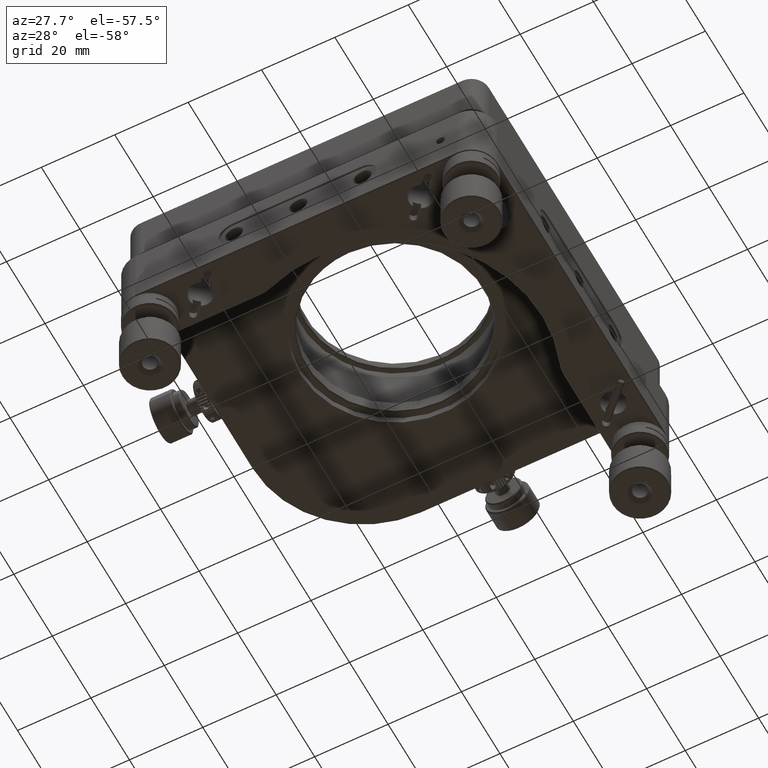
[diagram: clean part render]
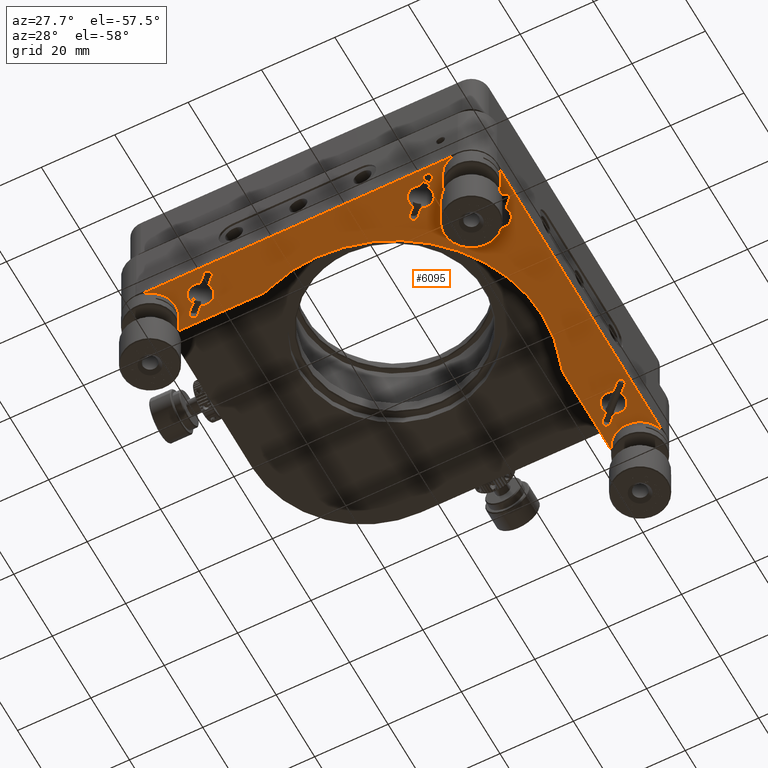
[diagram: same view with one face highlighted and labeled with its STEP entity id]
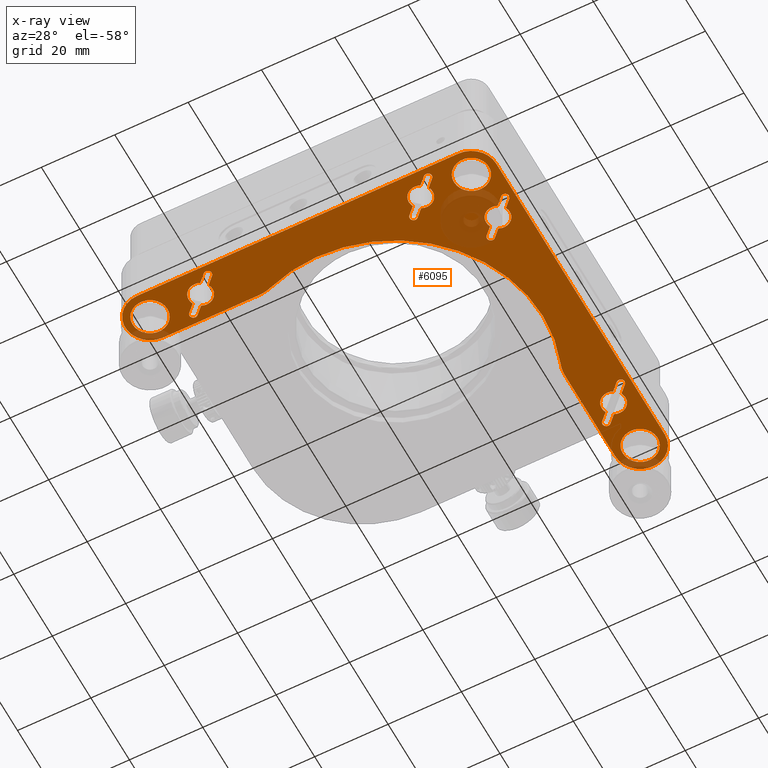
[diagram: x-ray of the same camera — body ghosted, the highlighted face saturated]
A machine part, auxiliary view. The second image highlights one B-rep face of the part: STEP entity #6095.
The next image is the same camera in x-ray: the body ghosted, the highlighted face saturated — about 10% of this face is hidden behind the body in this view.
In plain terms, the highlighted planar face has unit normal (0, 0, 1).
Its self-contained STEP definition (entity closure, byte-faithful):
#19 = CARTESIAN_POINT ( 'NONE',  ( -52.82053211124533476, 12.63560787075346958, 4.538425379416565875 ) ) ;
#71 = CARTESIAN_POINT ( 'NONE',  ( -56.25000000000004974, -42.45000000000000995, 4.538425379416565875 ) ) ;
#103 = CARTESIAN_POINT ( 'NONE',  ( -148.6000000000000512, -56.25000000000004263, 4.538425379416565875 ) ) ;
#342 = VERTEX_POINT ( 'NONE', #31326 ) ;
#453 = CARTESIAN_POINT ( 'NONE',  ( -51.33560787075357013, -45.87946788875479598, 4.538425379416564986 ) ) ;
#557 = CIRCLE ( 'NONE', #39779, 40.24999999999997868 ) ;
#833 = CARTESIAN_POINT ( 'NONE',  ( -117.6500000000000483, -59.25000000000004263, 4.538425379416566763 ) ) ;
#965 = EDGE_CURVE ( 'NONE', #10097, #51570, #53167, .T. ) ;
#1050 = CIRCLE ( 'NONE', #23262, 3.250000000000002665 ) ;
#1102 = LINE ( 'NONE', #52419, #21638 ) ;
#1263 = CIRCLE ( 'NONE', #42216, 3.250000000000002665 ) ;
#1331 = EDGE_CURVE ( 'NONE', #7213, #31013, #44115, .T. ) ;
#1424 = AXIS2_PLACEMENT_3D ( 'NONE', #833, #46845, #13633 ) ;
#1595 = ORIENTED_EDGE ( 'NONE', *, *, #11805, .F. ) ;
#1645 = PLANE ( 'NONE',  #1857 ) ;
#1665 = LINE ( 'NONE', #14457, #3009 ) ;
#1686 = CARTESIAN_POINT ( 'NONE',  ( -134.2219300090007152, -52.07806999099941692, 4.538425379416565875 ) ) ;
#1724 = LINE ( 'NONE', #52733, #5985 ) ;
#1817 = VERTEX_POINT ( 'NONE', #18417 ) ;
#1850 = CARTESIAN_POINT ( 'NONE',  ( -134.9643921292465620, -52.82053211124529213, 4.538425379416564986 ) ) ;
#1857 = AXIS2_PLACEMENT_3D ( 'NONE', #48761, #44302, #24147 ) ;
#1981 = DIRECTION ( 'NONE',  ( -0.000000000000000000, -0.000000000000000000, -1.000000000000000000 ) ) ;
#2151 = DIRECTION ( 'NONE',  ( 0.000000000000000000, -0.000000000000000000, 1.000000000000000000 ) ) ;
#2319 = AXIS2_PLACEMENT_3D ( 'NONE', #17116, #50349, #20482 ) ;
#2450 = LINE ( 'NONE', #31977, #10220 ) ;
#2513 = AXIS2_PLACEMENT_3D ( 'NONE', #49098, #1981, #40182 ) ;
#2601 = LINE ( 'NONE', #34846, #14791 ) ;
#2625 = ORIENTED_EDGE ( 'NONE', *, *, #965, .F. ) ;
#2861 = CARTESIAN_POINT ( 'NONE',  ( -73.47946788875484003, -51.33560787075354170, 4.538425379416565875 ) ) ;
#2902 = CARTESIAN_POINT ( 'NONE',  ( -72.96731843733910239, -54.81760580315277309, 4.538425379416566763 ) ) ;
#2910 = ORIENTED_EDGE ( 'NONE', *, *, #14964, .F. ) ;
#3009 = VECTOR ( 'NONE', #14199, 1000.000000000000114 ) ;
#3011 = LINE ( 'NONE', #53225, #5729 ) ;
#3146 = EDGE_CURVE ( 'NONE', #31013, #41719, #5848, .T. ) ;
#3234 = ORIENTED_EDGE ( 'NONE', *, *, #41774, .F. ) ;
#3260 = EDGE_CURVE ( 'NONE', #39385, #4608, #23299, .T. ) ;
#3402 = EDGE_CURVE ( 'NONE', #54981, #40426, #30019, .T. ) ;
#4123 = EDGE_LOOP ( 'NONE', ( #40074, #21198, #43473, #21417, #18763, #1595, #2910, #5221 ) ) ;
#4129 = CARTESIAN_POINT ( 'NONE',  ( -49.50000000000039080, 31.34999999999996945, 4.538425379402511339 ) ) ;
#4199 = LINE ( 'NONE', #19, #8682 ) ;
#4247 = EDGE_CURVE ( 'NONE', #35050, #54963, #15650, .T. ) ;
#4446 = DIRECTION ( 'NONE',  ( -0.7071067811865500152, 0.7071067811865451302, 0.000000000000000000 ) ) ;
#4608 = VERTEX_POINT ( 'NONE', #32803 ) ;
#4716 = ORIENTED_EDGE ( 'NONE', *, *, #3402, .F. ) ;
#4729 = CIRCLE ( 'NONE', #43046, 3.250000000000002665 ) ;
#4763 = CARTESIAN_POINT ( 'NONE',  ( -52.82053211124533476, 12.63560787075346958, 4.538425379416565875 ) ) ;
#4901 = AXIS2_PLACEMENT_3D ( 'NONE', #44406, #14543, #40484 ) ;
#5221 = ORIENTED_EDGE ( 'NONE', *, *, #8410, .T. ) ;
#5347 = EDGE_CURVE ( 'NONE', #54963, #6647, #53457, .T. ) ;
#5726 = EDGE_CURVE ( 'NONE', #12159, #17406, #34767, .T. ) ;
#5729 = VECTOR ( 'NONE', #37321, 1000.000000000000000 ) ;
#5803 = FACE_BOUND ( 'NONE', #42580, .T. ) ;
#5848 = LINE ( 'NONE', #6121, #54503 ) ;
#5985 = VECTOR ( 'NONE', #6157, 1000.000000000000227 ) ;
#6095 = ADVANCED_FACE ( 'NONE', ( #22518, #35646, #39564, #9986, #26985, #5803, #22799, #39845 ), #1645, .F. ) ;
#6121 = CARTESIAN_POINT ( 'NONE',  ( -126.6205321112452680, -61.16439212924651514, 4.538425379416565875 ) ) ;
#6157 = DIRECTION ( 'NONE',  ( -0.7071067811865487940, 0.7071067811865462405, 0.000000000000000000 ) ) ;
#6251 = ORIENTED_EDGE ( 'NONE', *, *, #28095, .F. ) ;
#6552 = EDGE_CURVE ( 'NONE', #21517, #39385, #3011, .T. ) ;
#6647 = VERTEX_POINT ( 'NONE', #25018 ) ;
#6852 = AXIS2_PLACEMENT_3D ( 'NONE', #25169, #46668, #16266 ) ;
#7051 = DIRECTION ( 'NONE',  ( -0.7071067811865561215, 0.7071067811865389130, 0.000000000000000000 ) ) ;
#7213 = VERTEX_POINT ( 'NONE', #48391 ) ;
#7485 = CARTESIAN_POINT ( 'NONE',  ( -52.07806999099944534, -46.62193000900066409, 4.538425379416565875 ) ) ;
#8187 = AXIS2_PLACEMENT_3D ( 'NONE', #47086, #39000, #38436 ) ;
#8220 = CARTESIAN_POINT ( 'NONE',  ( -65.13560787075353176, -59.67946788875476472, 4.538425379416564986 ) ) ;
#8351 = CARTESIAN_POINT ( 'NONE',  ( -128.6176058031527702, -59.16731843733904839, 4.538425379416565875 ) ) ;
#8397 = CARTESIAN_POINT ( 'NONE',  ( -67.13268156266103404, -57.68239419684731217, 4.538425379416564986 ) ) ;
#8410 = EDGE_CURVE ( 'NONE', #19141, #32996, #11333, .T. ) ;
#8650 = CIRCLE ( 'NONE', #39841, 6.750000000067757355 ) ;
#8682 = VECTOR ( 'NONE', #12553, 1000.000000000000000 ) ;
#8716 = AXIS2_PLACEMENT_3D ( 'NONE', #48387, #44726, #31337 ) ;
#9014 = DIRECTION ( 'NONE',  ( -0.000000000000000000, 1.000000000000000000, 0.000000000000000000 ) ) ;
#9240 = VECTOR ( 'NONE', #45577, 1000.000000000000000 ) ;
#9427 = EDGE_CURVE ( 'NONE', #17991, #14417, #44716, .T. ) ;
#9535 = CIRCLE ( 'NONE', #51420, 4.750000000000004441 ) ;
#9986 = FACE_BOUND ( 'NONE', #27141, .T. ) ;
#10097 = VERTEX_POINT ( 'NONE', #16424 ) ;
#10117 = LINE ( 'NONE', #52261, #46769 ) ;
#10220 = VECTOR ( 'NONE', #18902, 1000.000000000000000 ) ;
#10290 = DIRECTION ( 'NONE',  ( 0.000000000000000000, -0.000000000000000000, 1.000000000000000000 ) ) ;
#10815 = CARTESIAN_POINT ( 'NONE',  ( -56.25000000000004974, -42.45000000000000995, 4.538425379416565875 ) ) ;
#11135 = EDGE_LOOP ( 'NONE', ( #25662 ) ) ;
#11333 = CIRCLE ( 'NONE', #6852, 3.250000000000002665 ) ;
#11384 = DIRECTION ( 'NONE',  ( -1.000000000000000000, -4.270088556250598741E-15, 0.000000000000000000 ) ) ;
#11763 = CARTESIAN_POINT ( 'NONE',  ( -60.42193000900068256, 21.72193000900064064, 4.538425379416565875 ) ) ;
#11771 = DIRECTION ( 'NONE',  ( -1.000000000000000000, 0.000000000000000000, 0.000000000000000000 ) ) ;
#11805 = EDGE_CURVE ( 'NONE', #39230, #17991, #14960, .T. ) ;
#11857 = AXIS2_PLACEMENT_3D ( 'NONE', #51315, #34830, #47677 ) ;
#12159 = VERTEX_POINT ( 'NONE', #41200 ) ;
#12429 = VERTEX_POINT ( 'NONE', #1850 ) ;
#12516 = EDGE_CURVE ( 'NONE', #32725, #43049, #34675, .T. ) ;
#12553 = DIRECTION ( 'NONE',  ( -0.7071067811865432429, 0.7071067811865517916, 0.000000000000000000 ) ) ;
#12644 = DIRECTION ( 'NONE',  ( 0.000000000000000000, -1.000000000000000000, -0.000000000000000000 ) ) ;
#12660 = ORIENTED_EDGE ( 'NONE', *, *, #52655, .F. ) ;
#12760 = DIRECTION ( 'NONE',  ( -1.000000000000000000, 0.000000000000000000, 0.000000000000000000 ) ) ;
#12867 = ORIENTED_EDGE ( 'NONE', *, *, #24381, .F. ) ;
#13083 = DIRECTION ( 'NONE',  ( 0.000000000000000000, -0.000000000000000000, 1.000000000000000000 ) ) ;
#13566 = CARTESIAN_POINT ( 'NONE',  ( -100.0500000000000540, -63.00000000000005684, 4.538425379416565875 ) ) ;
#13633 = DIRECTION ( 'NONE',  ( 1.000000000000000000, 0.000000000000000000, 0.000000000000000000 ) ) ;
#13978 = VECTOR ( 'NONE', #41154, 1000.000000000000000 ) ;
#14003 = LINE ( 'NONE', #14262, #44240 ) ;
#14070 = ORIENTED_EDGE ( 'NONE', *, *, #28235, .F. ) ;
#14164 = CARTESIAN_POINT ( 'NONE',  ( -53.25000000000005684, 5.149999999999953282, 4.538425379416553440 ) ) ;
#14199 = DIRECTION ( 'NONE',  ( -0.7071067811865451302, 0.7071067811865500152, 0.000000000000000000 ) ) ;
#14262 = CARTESIAN_POINT ( 'NONE',  ( -53.33268156266102977, -43.88239419684731502, 4.538425379416565875 ) ) ;
#14417 = VERTEX_POINT ( 'NONE', #28802 ) ;
#14457 = CARTESIAN_POINT ( 'NONE',  ( -52.82053211124532055, -47.36439212924652509, 4.538425379416565875 ) ) ;
#14543 = DIRECTION ( 'NONE',  ( -0.000000000000000000, -0.000000000000000000, 1.000000000000000000 ) ) ;
#14791 = VECTOR ( 'NONE', #43220, 1000.000000000000000 ) ;
#14834 = ORIENTED_EDGE ( 'NONE', *, *, #38389, .T. ) ;
#14854 = EDGE_CURVE ( 'NONE', #51081, #14417, #1050, .T. ) ;
#14960 = CIRCLE ( 'NONE', #2513, 1.049999999999995381 ) ;
#14964 = EDGE_CURVE ( 'NONE', #19141, #39230, #28887, .T. ) ;
#15145 = VECTOR ( 'NONE', #45920, 1000.000000000000000 ) ;
#15430 = EDGE_CURVE ( 'NONE', #42335, #54981, #16557, .T. ) ;
#15650 = LINE ( 'NONE', #31835, #48313 ) ;
#15683 = VERTEX_POINT ( 'NONE', #23455 ) ;
#15824 = CIRCLE ( 'NONE', #8716, 4.750000000000004441 ) ;
#16229 = EDGE_CURVE ( 'NONE', #46124, #46124, #9535, .T. ) ;
#16232 = DIRECTION ( 'NONE',  ( -0.000000000000000000, -0.000000000000000000, 1.000000000000000000 ) ) ;
#16266 = DIRECTION ( 'NONE',  ( -1.000000000000000000, 0.000000000000000000, 0.000000000000000000 ) ) ;
#16291 = DIRECTION ( 'NONE',  ( -1.000000000000000000, 0.000000000000000000, 0.000000000000000000 ) ) ;
#16313 = AXIS2_PLACEMENT_3D ( 'NONE', #30545, #34472, #35584 ) ;
#16351 = EDGE_CURVE ( 'NONE', #15683, #12429, #1724, .T. ) ;
#16424 = CARTESIAN_POINT ( 'NONE',  ( -51.33560787075358434, 14.12053211124520580, 4.538425379416565875 ) ) ;
#16557 = LINE ( 'NONE', #51145, #19267 ) ;
#16904 = EDGE_CURVE ( 'NONE', #4608, #43377, #18019, .T. ) ;
#17081 = CARTESIAN_POINT ( 'NONE',  ( -57.68239419684732638, -39.53268156266097577, 4.538425379416565875 ) ) ;
#17116 = CARTESIAN_POINT ( 'NONE',  ( -130.0500000000000682, -56.25000000000002842, 4.538425379416565875 ) ) ;
#17406 = VERTEX_POINT ( 'NONE', #2861 ) ;
#17880 = DIRECTION ( 'NONE',  ( 0.7071067811865450192, -0.7071067811865500152, 0.000000000000000000 ) ) ;
#17991 = VERTEX_POINT ( 'NONE', #31938 ) ;
#18019 = LINE ( 'NONE', #13566, #19222 ) ;
#18032 = CARTESIAN_POINT ( 'NONE',  ( -133.4794678887548400, -51.33560787075354170, 4.538425379416564986 ) ) ;
#18417 = CARTESIAN_POINT ( 'NONE',  ( -54.81760580315279441, 14.63268156266094699, 4.538425379416565875 ) ) ;
#18631 = ORIENTED_EDGE ( 'NONE', *, *, #16351, .F. ) ;
#18763 = ORIENTED_EDGE ( 'NONE', *, *, #9427, .F. ) ;
#18861 = EDGE_LOOP ( 'NONE', ( #49660 ) ) ;
#18902 = DIRECTION ( 'NONE',  ( -0.7071067811865439090, 0.7071067811865512365, 0.000000000000000000 ) ) ;
#19141 = VERTEX_POINT ( 'NONE', #8397 ) ;
#19222 = VECTOR ( 'NONE', #23028, 1000.000000000000000 ) ;
#19265 = VERTEX_POINT ( 'NONE', #35970 ) ;
#19267 = VECTOR ( 'NONE', #12644, 1000.000000000000000 ) ;
#19628 = AXIS2_PLACEMENT_3D ( 'NONE', #24213, #49086, #19764 ) ;
#19630 = CARTESIAN_POINT ( 'NONE',  ( -59.67946788875480735, 22.46439212924650874, 4.538425379416565875 ) ) ;
#19746 = CARTESIAN_POINT ( 'NONE',  ( -127.1326815626610482, -57.68239419684729796, 4.538425379416565875 ) ) ;
#19753 = DIRECTION ( 'NONE',  ( 0.000000000000000000, 0.000000000000000000, -1.000000000000000000 ) ) ;
#19764 = DIRECTION ( 'NONE',  ( -1.000000000000000000, 0.000000000000000000, 0.000000000000000000 ) ) ;
#19964 = DIRECTION ( 'NONE',  ( 0.000000000000000000, 0.000000000000000000, 1.000000000000000000 ) ) ;
#20084 = CARTESIAN_POINT ( 'NONE',  ( -61.16439212924655777, 20.97946788875476543, 4.538425379416564986 ) ) ;
#20127 = DIRECTION ( 'NONE',  ( 0.000000000000000000, 0.000000000000000000, -1.000000000000000000 ) ) ;
#20402 = DIRECTION ( 'NONE',  ( -1.000000000000000000, 0.000000000000000000, 0.000000000000000000 ) ) ;
#20482 = DIRECTION ( 'NONE',  ( -1.000000000000000000, 0.000000000000000000, 0.000000000000000000 ) ) ;
#20628 = EDGE_CURVE ( 'NONE', #43049, #42335, #8650, .T. ) ;
#20678 = ORIENTED_EDGE ( 'NONE', *, *, #28600, .F. ) ;
#20693 = ORIENTED_EDGE ( 'NONE', *, *, #46492, .F. ) ;
#21198 = ORIENTED_EDGE ( 'NONE', *, *, #5726, .F. ) ;
#21291 = EDGE_CURVE ( 'NONE', #52258, #44997, #4729, .T. ) ;
#21417 = ORIENTED_EDGE ( 'NONE', *, *, #14854, .T. ) ;
#21496 = EDGE_CURVE ( 'NONE', #43079, #39598, #28156, .T. ) ;
#21517 = VERTEX_POINT ( 'NONE', #23684 ) ;
#21611 = EDGE_CURVE ( 'NONE', #52630, #55146, #47509, .T. ) ;
#21638 = VECTOR ( 'NONE', #4446, 1000.000000000000114 ) ;
#21672 = EDGE_CURVE ( 'NONE', #51081, #12159, #1102, .T. ) ;
#21699 = CARTESIAN_POINT ( 'NONE',  ( -56.25000000000004263, 31.34999999999996945, 4.538425379484991140 ) ) ;
#21773 = ORIENTED_EDGE ( 'NONE', *, *, #3260, .F. ) ;
#22074 = DIRECTION ( 'NONE',  ( 0.000000000000000000, 0.000000000000000000, -1.000000000000000000 ) ) ;
#22518 = FACE_BOUND ( 'NONE', #22999, .T. ) ;
#22776 = CARTESIAN_POINT ( 'NONE',  ( -56.25000000000005684, -56.25000000000003553, 4.538425379416565875 ) ) ;
#22799 = FACE_BOUND ( 'NONE', #18861, .T. ) ;
#22857 = EDGE_LOOP ( 'NONE', ( #33539, #21773, #51477, #12867, #6251, #4716, #30639, #52253, #43586, #20678 ) ) ;
#22999 = EDGE_LOOP ( 'NONE', ( #55155, #36747, #46724, #34990, #36158, #27693, #41826, #2625 ) ) ;
#23028 = DIRECTION ( 'NONE',  ( 1.000000000000000000, 0.000000000000000000, -0.000000000000000000 ) ) ;
#23262 = AXIS2_PLACEMENT_3D ( 'NONE', #35154, #19964, #31758 ) ;
#23299 = CIRCLE ( 'NONE', #8187, 6.750000000010913936 ) ;
#23423 = VECTOR ( 'NONE', #23950, 1000.000000000000227 ) ;
#23455 = CARTESIAN_POINT ( 'NONE',  ( -132.9673184373391166, -54.81760580315275178, 4.538425379416564098 ) ) ;
#23650 = DIRECTION ( 'NONE',  ( -0.7071067811865536790, 0.7071067811865414665, 0.000000000000000000 ) ) ;
#23684 = CARTESIAN_POINT ( 'NONE',  ( -117.6500000000000625, -49.50000000000002842, 4.538425379416565875 ) ) ;
#23950 = DIRECTION ( 'NONE',  ( 0.7071067811865487940, -0.7071067811865462405, 0.000000000000000000 ) ) ;
#24065 = AXIS2_PLACEMENT_3D ( 'NONE', #11763, #20127, #20402 ) ;
#24147 = DIRECTION ( 'NONE',  ( 1.000000000000000000, 0.000000000000000000, -0.000000000000000000 ) ) ;
#24175 = ORIENTED_EDGE ( 'NONE', *, *, #21496, .F. ) ;
#24213 = CARTESIAN_POINT ( 'NONE',  ( -74.22193000900071524, -52.07806999099941692, 4.538425379416565875 ) ) ;
#24361 = AXIS2_PLACEMENT_3D ( 'NONE', #10815, #36203, #11384 ) ;
#24381 = EDGE_CURVE ( 'NONE', #342, #21517, #38792, .T. ) ;
#24492 = DIRECTION ( 'NONE',  ( -1.000000000000000000, 0.000000000000000000, 0.000000000000000000 ) ) ;
#24558 = CARTESIAN_POINT ( 'NONE',  ( -59.16731843733907681, -41.01760580315271199, 4.538425379416565875 ) ) ;
#25005 = EDGE_CURVE ( 'NONE', #34837, #39598, #31673, .T. ) ;
#25018 = CARTESIAN_POINT ( 'NONE',  ( -59.67946788875480735, 22.46439212924650519, 4.538425379416564986 ) ) ;
#25099 = CARTESIAN_POINT ( 'NONE',  ( -61.00000000000006395, 31.34999999999997655, 4.538425379416565875 ) ) ;
#25169 = CARTESIAN_POINT ( 'NONE',  ( -70.05000000000005400, -56.25000000000003553, 4.538425379416565875 ) ) ;
#25570 = AXIS2_PLACEMENT_3D ( 'NONE', #1686, #51884, #51613 ) ;
#25662 = ORIENTED_EDGE ( 'NONE', *, *, #33977, .T. ) ;
#25719 = DIRECTION ( 'NONE',  ( -0.000000000000000000, -0.000000000000000000, -1.000000000000000000 ) ) ;
#25777 = CARTESIAN_POINT ( 'NONE',  ( -49.50000000000038369, -56.25000000000003553, 4.538425379402518445 ) ) ;
#26032 = EDGE_CURVE ( 'NONE', #49563, #52630, #2450, .T. ) ;
#26459 = CIRCLE ( 'NONE', #25570, 1.049999999999995381 ) ;
#26877 = CARTESIAN_POINT ( 'NONE',  ( -63.00000000003427658, 31.34999999999998366, 4.538425379450778507 ) ) ;
#26985 = FACE_BOUND ( 'NONE', #4123, .T. ) ;
#27141 = EDGE_LOOP ( 'NONE', ( #49812 ) ) ;
#27693 = ORIENTED_EDGE ( 'NONE', *, *, #37214, .T. ) ;
#27777 = DIRECTION ( 'NONE',  ( 1.000000000000000000, 0.000000000000000000, 0.000000000000000000 ) ) ;
#27866 = CARTESIAN_POINT ( 'NONE',  ( -133.4794678887548400, -51.33560787075354170, 4.538425379416565875 ) ) ;
#28095 = EDGE_CURVE ( 'NONE', #40426, #342, #557, .T. ) ;
#28156 = LINE ( 'NONE', #27866, #23423 ) ;
#28235 = EDGE_CURVE ( 'NONE', #52258, #30753, #14003, .T. ) ;
#28564 = DIRECTION ( 'NONE',  ( -0.000000000000000000, -0.000000000000000000, 1.000000000000000000 ) ) ;
#28600 = EDGE_CURVE ( 'NONE', #43377, #32725, #29707, .T. ) ;
#28728 = VERTEX_POINT ( 'NONE', #54144 ) ;
#28802 = CARTESIAN_POINT ( 'NONE',  ( -68.61760580315277025, -59.16731843733906260, 4.538425379416565875 ) ) ;
#28887 = LINE ( 'NONE', #41461, #15145 ) ;
#29707 = CIRCLE ( 'NONE', #33292, 6.750000000067757355 ) ;
#29960 = DIRECTION ( 'NONE',  ( -1.000000000000000000, -4.270088556250598741E-15, 0.000000000000000000 ) ) ;
#30019 = CIRCLE ( 'NONE', #49504, 9.750000000000001776 ) ;
#30080 = DIRECTION ( 'NONE',  ( 1.000000000000000000, 0.000000000000000000, 0.000000000000000000 ) ) ;
#30159 = CARTESIAN_POINT ( 'NONE',  ( -61.16439212924654356, -39.02053211124523102, 4.538425379416564986 ) ) ;
#30209 = CARTESIAN_POINT ( 'NONE',  ( -49.50000000000005684, -12.45000000000003659, 4.538425379416565875 ) ) ;
#30306 = CARTESIAN_POINT ( 'NONE',  ( -52.07806999099945955, 13.37806999099933769, 4.538425379416565875 ) ) ;
#30545 = CARTESIAN_POINT ( 'NONE',  ( -56.25000000000007105, 17.54999999999999005, 4.538425379416565875 ) ) ;
#30639 = ORIENTED_EDGE ( 'NONE', *, *, #15430, .F. ) ;
#30753 = VERTEX_POINT ( 'NONE', #453 ) ;
#31013 = VERTEX_POINT ( 'NONE', #39151 ) ;
#31017 = VECTOR ( 'NONE', #9014, 1000.000000000000000 ) ;
#31259 = DIRECTION ( 'NONE',  ( 0.7071067811865439090, -0.7071067811865512365, 0.000000000000000000 ) ) ;
#31326 = CARTESIAN_POINT ( 'NONE',  ( -114.2180000000000462, -50.12400000000004496, 4.538425379416569427 ) ) ;
#31337 = DIRECTION ( 'NONE',  ( -1.000000000000000000, 0.000000000000000000, 0.000000000000000000 ) ) ;
#31673 = CIRCLE ( 'NONE', #2319, 3.250000000000002665 ) ;
#31758 = DIRECTION ( 'NONE',  ( -1.000000000000000000, 0.000000000000000000, 0.000000000000000000 ) ) ;
#31835 = CARTESIAN_POINT ( 'NONE',  ( -59.16731843733909812, 18.98239419684729512, 4.538425379416565875 ) ) ;
#31938 = CARTESIAN_POINT ( 'NONE',  ( -66.62053211124526797, -61.16439212924651514, 4.538425379416564986 ) ) ;
#31977 = CARTESIAN_POINT ( 'NONE',  ( -59.16731843733907681, -41.01760580315271199, 4.538425379416565875 ) ) ;
#32180 = DIRECTION ( 'NONE',  ( 0.000000000000000000, 0.000000000000000000, 1.000000000000000000 ) ) ;
#32284 = EDGE_CURVE ( 'NONE', #51570, #1817, #4199, .T. ) ;
#32725 = VERTEX_POINT ( 'NONE', #25777 ) ;
#32803 = CARTESIAN_POINT ( 'NONE',  ( -143.8500000000000227, -62.99999999992508748, 4.538425379341599175 ) ) ;
#32884 = EDGE_CURVE ( 'NONE', #34023, #34023, #15824, .T. ) ;
#32996 = VERTEX_POINT ( 'NONE', #53920 ) ;
#33292 = AXIS2_PLACEMENT_3D ( 'NONE', #48514, #10290, #44326 ) ;
#33539 = ORIENTED_EDGE ( 'NONE', *, *, #16904, .F. ) ;
#33977 = EDGE_CURVE ( 'NONE', #28728, #28728, #34806, .T. ) ;
#34023 = VERTEX_POINT ( 'NONE', #25099 ) ;
#34103 = ORIENTED_EDGE ( 'NONE', *, *, #26032, .F. ) ;
#34116 = CIRCLE ( 'NONE', #16313, 3.250000000000009770 ) ;
#34379 = CARTESIAN_POINT ( 'NONE',  ( -125.8780699909994070, -60.42193000900063993, 4.538425379416565875 ) ) ;
#34472 = DIRECTION ( 'NONE',  ( -0.000000000000000000, -0.000000000000000000, 1.000000000000000000 ) ) ;
#34675 = LINE ( 'NONE', #30209, #31017 ) ;
#34767 = CIRCLE ( 'NONE', #19628, 1.049999999999995381 ) ;
#34806 = CIRCLE ( 'NONE', #40141, 4.749999999999997335 ) ;
#34830 = DIRECTION ( 'NONE',  ( 0.000000000000000000, 0.000000000000000000, -1.000000000000000000 ) ) ;
#34837 = VERTEX_POINT ( 'NONE', #19746 ) ;
#34846 = CARTESIAN_POINT ( 'NONE',  ( -53.33268156266104398, 16.11760580315268854, 4.538425379416565875 ) ) ;
#34990 = ORIENTED_EDGE ( 'NONE', *, *, #5347, .F. ) ;
#35050 = VERTEX_POINT ( 'NONE', #47357 ) ;
#35154 = CARTESIAN_POINT ( 'NONE',  ( -70.05000000000005400, -56.25000000000003553, 4.538425379416565875 ) ) ;
#35584 = DIRECTION ( 'NONE',  ( -1.000000000000000000, 0.000000000000000000, 0.000000000000000000 ) ) ;
#35646 = FACE_BOUND ( 'NONE', #36119, .T. ) ;
#35970 = CARTESIAN_POINT ( 'NONE',  ( -52.82053211124532055, -47.36439212924653219, 4.538425379416565875 ) ) ;
#36119 = EDGE_LOOP ( 'NONE', ( #14070, #40167, #12660, #45457, #34103, #36822, #3234, #20693 ) ) ;
#36158 = ORIENTED_EDGE ( 'NONE', *, *, #4247, .F. ) ;
#36203 = DIRECTION ( 'NONE',  ( -0.000000000000000000, -0.000000000000000000, 1.000000000000000000 ) ) ;
#36403 = CARTESIAN_POINT ( 'NONE',  ( -130.0500000000000682, -56.25000000000002842, 4.538425379416565875 ) ) ;
#36423 = CARTESIAN_POINT ( 'NONE',  ( -56.25000000000006395, -63.00000000003095124, 4.538425379402518445 ) ) ;
#36747 = ORIENTED_EDGE ( 'NONE', *, *, #39733, .T. ) ;
#36822 = ORIENTED_EDGE ( 'NONE', *, *, #44344, .T. ) ;
#37214 = EDGE_CURVE ( 'NONE', #35050, #1817, #34116, .T. ) ;
#37321 = DIRECTION ( 'NONE',  ( -1.000000000000000000, -0.000000000000000000, 0.000000000000000000 ) ) ;
#37526 = LINE ( 'NONE', #54536, #13978 ) ;
#38000 = CARTESIAN_POINT ( 'NONE',  ( -59.67946788875478603, -37.53560787075350902, 4.538425379416565875 ) ) ;
#38389 = EDGE_CURVE ( 'NONE', #15683, #41719, #1263, .T. ) ;
#38436 = DIRECTION ( 'NONE',  ( 1.000000000000000000, 0.000000000000000000, 0.000000000000000000 ) ) ;
#38792 = CIRCLE ( 'NONE', #1424, 9.750000000000008882 ) ;
#38869 = ORIENTED_EDGE ( 'NONE', *, *, #48052, .F. ) ;
#39000 = DIRECTION ( 'NONE',  ( 0.000000000000000000, -0.000000000000000000, 1.000000000000000000 ) ) ;
#39145 = DIRECTION ( 'NONE',  ( 0.7071067811865500152, -0.7071067811865451302, 0.000000000000000000 ) ) ;
#39151 = CARTESIAN_POINT ( 'NONE',  ( -126.6205321112452680, -61.16439212924651514, 4.538425379416565875 ) ) ;
#39230 = VERTEX_POINT ( 'NONE', #8220 ) ;
#39385 = VERTEX_POINT ( 'NONE', #40010 ) ;
#39564 = FACE_BOUND ( 'NONE', #11135, .T. ) ;
#39598 = VERTEX_POINT ( 'NONE', #51408 ) ;
#39733 = EDGE_CURVE ( 'NONE', #50541, #54403, #44105, .T. ) ;
#39779 = AXIS2_PLACEMENT_3D ( 'NONE', #48852, #22074, #53014 ) ;
#39841 = AXIS2_PLACEMENT_3D ( 'NONE', #21699, #13083, #30080 ) ;
#39845 = FACE_OUTER_BOUND ( 'NONE', #22857, .T. ) ;
#40003 = CARTESIAN_POINT ( 'NONE',  ( -66.62053211124526797, -61.16439212924651514, 4.538425379416565875 ) ) ;
#40010 = CARTESIAN_POINT ( 'NONE',  ( -143.8500000000000227, -49.50000000002879119, 4.538425379264923620 ) ) ;
#40074 = ORIENTED_EDGE ( 'NONE', *, *, #46087, .F. ) ;
#40141 = AXIS2_PLACEMENT_3D ( 'NONE', #22776, #43726, #42882 ) ;
#40167 = ORIENTED_EDGE ( 'NONE', *, *, #21291, .T. ) ;
#40182 = DIRECTION ( 'NONE',  ( -1.000000000000000000, 0.000000000000000000, 0.000000000000000000 ) ) ;
#40426 = VERTEX_POINT ( 'NONE', #53039 ) ;
#40484 = DIRECTION ( 'NONE',  ( -1.000000000000000000, 0.000000000000000000, 0.000000000000000000 ) ) ;
#41044 = DIRECTION ( 'NONE',  ( -0.7071067811865451302, 0.7071067811865500152, 0.000000000000000000 ) ) ;
#41154 = DIRECTION ( 'NONE',  ( 0.7071067811865536790, -0.7071067811865414665, 0.000000000000000000 ) ) ;
#41200 = CARTESIAN_POINT ( 'NONE',  ( -74.96439212924657625, -52.82053211124529213, 4.538425379416565875 ) ) ;
#41461 = CARTESIAN_POINT ( 'NONE',  ( -67.13268156266104825, -57.68239419684730507, 4.538425379416565875 ) ) ;
#41719 = VERTEX_POINT ( 'NONE', #8351 ) ;
#41774 = EDGE_CURVE ( 'NONE', #19265, #45805, #1665, .T. ) ;
#41826 = ORIENTED_EDGE ( 'NONE', *, *, #32284, .F. ) ;
#42216 = AXIS2_PLACEMENT_3D ( 'NONE', #36403, #32180, #29960 ) ;
#42335 = VERTEX_POINT ( 'NONE', #26877 ) ;
#42580 = EDGE_LOOP ( 'NONE', ( #24175, #50210, #18631, #14834, #45238, #50951, #38869, #47664 ) ) ;
#42882 = DIRECTION ( 'NONE',  ( 1.000000000000000000, 0.000000000000000000, 0.000000000000000000 ) ) ;
#43046 = AXIS2_PLACEMENT_3D ( 'NONE', #71, #16232, #11771 ) ;
#43049 = VERTEX_POINT ( 'NONE', #4129 ) ;
#43079 = VERTEX_POINT ( 'NONE', #18032 ) ;
#43220 = DIRECTION ( 'NONE',  ( 0.7071067811865432429, -0.7071067811865517916, 0.000000000000000000 ) ) ;
#43377 = VERTEX_POINT ( 'NONE', #36423 ) ;
#43473 = ORIENTED_EDGE ( 'NONE', *, *, #21672, .F. ) ;
#43477 = CARTESIAN_POINT ( 'NONE',  ( -53.33268156266104398, 16.11760580315268854, 4.538425379416567651 ) ) ;
#43586 = ORIENTED_EDGE ( 'NONE', *, *, #12516, .F. ) ;
#43726 = DIRECTION ( 'NONE',  ( 0.000000000000000000, 0.000000000000000000, 1.000000000000000000 ) ) ;
#43928 = VECTOR ( 'NONE', #17880, 1000.000000000000000 ) ;
#44105 = CIRCLE ( 'NONE', #4901, 3.250000000000009770 ) ;
#44115 = CIRCLE ( 'NONE', #51228, 1.049999999999995381 ) ;
#44240 = VECTOR ( 'NONE', #31259, 1000.000000000000000 ) ;
#44302 = DIRECTION ( 'NONE',  ( 0.000000000000000000, 0.000000000000000000, 1.000000000000000000 ) ) ;
#44326 = DIRECTION ( 'NONE',  ( 1.000000000000000000, 0.000000000000000000, 0.000000000000000000 ) ) ;
#44344 = EDGE_CURVE ( 'NONE', #49563, #45805, #52893, .T. ) ;
#44406 = CARTESIAN_POINT ( 'NONE',  ( -56.25000000000007105, 17.54999999999999005, 4.538425379416565875 ) ) ;
#44716 = LINE ( 'NONE', #40003, #54879 ) ;
#44726 = DIRECTION ( 'NONE',  ( -0.000000000000000000, -0.000000000000000000, 1.000000000000000000 ) ) ;
#44997 = VERTEX_POINT ( 'NONE', #17081 ) ;
#45238 = ORIENTED_EDGE ( 'NONE', *, *, #3146, .F. ) ;
#45457 = ORIENTED_EDGE ( 'NONE', *, *, #21611, .F. ) ;
#45472 = CARTESIAN_POINT ( 'NONE',  ( -63.00000000000005684, 5.149999999999953282, 4.538425379416557881 ) ) ;
#45577 = DIRECTION ( 'NONE',  ( 0.7071067811865439090, -0.7071067811865512365, 0.000000000000000000 ) ) ;
#45805 = VERTEX_POINT ( 'NONE', #52107 ) ;
#45920 = DIRECTION ( 'NONE',  ( 0.7071067811865561215, -0.7071067811865389130, 0.000000000000000000 ) ) ;
#45979 = CARTESIAN_POINT ( 'NONE',  ( -59.67946788875479314, -37.53560787075350191, 4.538425379416565875 ) ) ;
#46087 = EDGE_CURVE ( 'NONE', #17406, #32996, #10117, .T. ) ;
#46124 = VERTEX_POINT ( 'NONE', #103 ) ;
#46492 = EDGE_CURVE ( 'NONE', #30753, #19265, #46811, .T. ) ;
#46668 = DIRECTION ( 'NONE',  ( 0.000000000000000000, 0.000000000000000000, 1.000000000000000000 ) ) ;
#46724 = ORIENTED_EDGE ( 'NONE', *, *, #51202, .F. ) ;
#46769 = VECTOR ( 'NONE', #39145, 1000.000000000000114 ) ;
#46811 = CIRCLE ( 'NONE', #50363, 1.049999999999995381 ) ;
#46845 = DIRECTION ( 'NONE',  ( 0.000000000000000000, -0.000000000000000000, 1.000000000000000000 ) ) ;
#47086 = CARTESIAN_POINT ( 'NONE',  ( -143.8500000000000227, -56.25000000000003553, 4.538425379266630699 ) ) ;
#47357 = CARTESIAN_POINT ( 'NONE',  ( -59.16731843733909102, 18.98239419684729512, 4.538425379416565875 ) ) ;
#47509 = CIRCLE ( 'NONE', #11857, 1.049999999999995381 ) ;
#47519 = CARTESIAN_POINT ( 'NONE',  ( -53.33268156266102977, -43.88239419684730791, 4.538425379416565875 ) ) ;
#47521 = EDGE_CURVE ( 'NONE', #50541, #10097, #2601, .T. ) ;
#47664 = ORIENTED_EDGE ( 'NONE', *, *, #25005, .T. ) ;
#47677 = DIRECTION ( 'NONE',  ( -1.000000000000000000, 0.000000000000000000, 0.000000000000000000 ) ) ;
#47871 = AXIS2_PLACEMENT_3D ( 'NONE', #30306, #51264, #12760 ) ;
#48052 = EDGE_CURVE ( 'NONE', #34837, #7213, #37526, .T. ) ;
#48313 = VECTOR ( 'NONE', #41044, 1000.000000000000114 ) ;
#48378 = CARTESIAN_POINT ( 'NONE',  ( -57.68239419684734770, 20.46731843733903133, 4.538425379416565875 ) ) ;
#48387 = CARTESIAN_POINT ( 'NONE',  ( -56.25000000000005684, 31.34999999999997655, 4.538425379416565875 ) ) ;
#48391 = CARTESIAN_POINT ( 'NONE',  ( -125.1356078707535318, -59.67946788875476472, 4.538425379416565875 ) ) ;
#48514 = CARTESIAN_POINT ( 'NONE',  ( -56.25000000000005684, -56.25000000000003553, 4.538425379484976929 ) ) ;
#48690 = EDGE_CURVE ( 'NONE', #12429, #43079, #26459, .T. ) ;
#48761 = CARTESIAN_POINT ( 'NONE',  ( -100.0500000000000540, -12.45000000000003659, 4.538425379416565875 ) ) ;
#48852 = CARTESIAN_POINT ( 'NONE',  ( -100.0500000000000540, -12.45000000000003659, 4.538425379416572980 ) ) ;
#49086 = DIRECTION ( 'NONE',  ( -0.000000000000000000, -0.000000000000000000, -1.000000000000000000 ) ) ;
#49098 = CARTESIAN_POINT ( 'NONE',  ( -65.87806999099940697, -60.42193000900063993, 4.538425379416565875 ) ) ;
#49504 = AXIS2_PLACEMENT_3D ( 'NONE', #14164, #2151, #27777 ) ;
#49563 = VERTEX_POINT ( 'NONE', #24558 ) ;
#49660 = ORIENTED_EDGE ( 'NONE', *, *, #32884, .T. ) ;
#49775 = LINE ( 'NONE', #19630, #9240 ) ;
#49812 = ORIENTED_EDGE ( 'NONE', *, *, #16229, .T. ) ;
#50210 = ORIENTED_EDGE ( 'NONE', *, *, #48690, .F. ) ;
#50349 = DIRECTION ( 'NONE',  ( 0.000000000000000000, 0.000000000000000000, 1.000000000000000000 ) ) ;
#50363 = AXIS2_PLACEMENT_3D ( 'NONE', #7485, #19753, #24492 ) ;
#50541 = VERTEX_POINT ( 'NONE', #43477 ) ;
#50627 = CARTESIAN_POINT ( 'NONE',  ( -143.8500000000000227, -56.25000000000004263, 4.538425379416565875 ) ) ;
#50951 = ORIENTED_EDGE ( 'NONE', *, *, #1331, .F. ) ;
#51081 = VERTEX_POINT ( 'NONE', #2902 ) ;
#51093 = LINE ( 'NONE', #38000, #43928 ) ;
#51145 = CARTESIAN_POINT ( 'NONE',  ( -63.00000000000005684, -12.45000000000003659, 4.538425379416565875 ) ) ;
#51202 = EDGE_CURVE ( 'NONE', #6647, #54403, #49775, .T. ) ;
#51228 = AXIS2_PLACEMENT_3D ( 'NONE', #34379, #25719, #52245 ) ;
#51264 = DIRECTION ( 'NONE',  ( 0.000000000000000000, 0.000000000000000000, -1.000000000000000000 ) ) ;
#51315 = CARTESIAN_POINT ( 'NONE',  ( -60.42193000900066835, -38.27806999099936291, 4.538425379416565875 ) ) ;
#51408 = CARTESIAN_POINT ( 'NONE',  ( -131.4823941968473662, -53.33268156266100135, 4.538425379416565875 ) ) ;
#51420 = AXIS2_PLACEMENT_3D ( 'NONE', #50627, #28564, #16291 ) ;
#51477 = ORIENTED_EDGE ( 'NONE', *, *, #6552, .F. ) ;
#51570 = VERTEX_POINT ( 'NONE', #4763 ) ;
#51613 = DIRECTION ( 'NONE',  ( -1.000000000000000000, 0.000000000000000000, 0.000000000000000000 ) ) ;
#51884 = DIRECTION ( 'NONE',  ( -0.000000000000000000, -0.000000000000000000, -1.000000000000000000 ) ) ;
#52107 = CARTESIAN_POINT ( 'NONE',  ( -54.81760580315278730, -45.36731843733905123, 4.538425379416565875 ) ) ;
#52245 = DIRECTION ( 'NONE',  ( -1.000000000000000000, 0.000000000000000000, 0.000000000000000000 ) ) ;
#52253 = ORIENTED_EDGE ( 'NONE', *, *, #20628, .F. ) ;
#52258 = VERTEX_POINT ( 'NONE', #47519 ) ;
#52261 = CARTESIAN_POINT ( 'NONE',  ( -73.47946788875484003, -51.33560787075354881, 4.538425379416565875 ) ) ;
#52419 = CARTESIAN_POINT ( 'NONE',  ( -72.96731843733910239, -54.81760580315276599, 4.538425379416565875 ) ) ;
#52630 = VERTEX_POINT ( 'NONE', #30159 ) ;
#52655 = EDGE_CURVE ( 'NONE', #55146, #44997, #51093, .T. ) ;
#52733 = CARTESIAN_POINT ( 'NONE',  ( -132.9673184373391166, -54.81760580315275178, 4.538425379416565875 ) ) ;
#52893 = CIRCLE ( 'NONE', #24361, 3.250000000000002665 ) ;
#53014 = DIRECTION ( 'NONE',  ( -1.000000000000000000, 0.000000000000000000, 0.000000000000000000 ) ) ;
#53039 = CARTESIAN_POINT ( 'NONE',  ( -62.37600000000006872, 1.717999999999948901, 4.538425379416563210 ) ) ;
#53167 = CIRCLE ( 'NONE', #47871, 1.049999999999995381 ) ;
#53225 = CARTESIAN_POINT ( 'NONE',  ( -100.0500000000000540, -49.50000000000002842, 4.538425379416565875 ) ) ;
#53457 = CIRCLE ( 'NONE', #24065, 1.049999999999995381 ) ;
#53920 = CARTESIAN_POINT ( 'NONE',  ( -71.48239419684736617, -53.33268156266101556, 4.538425379416565875 ) ) ;
#54144 = CARTESIAN_POINT ( 'NONE',  ( -51.50000000000005684, -56.25000000000003553, 4.538425379416565875 ) ) ;
#54403 = VERTEX_POINT ( 'NONE', #48378 ) ;
#54503 = VECTOR ( 'NONE', #23650, 1000.000000000000000 ) ;
#54536 = CARTESIAN_POINT ( 'NONE',  ( -127.1326815626610198, -57.68239419684730507, 4.538425379416565875 ) ) ;
#54879 = VECTOR ( 'NONE', #7051, 1000.000000000000000 ) ;
#54963 = VERTEX_POINT ( 'NONE', #20084 ) ;
#54981 = VERTEX_POINT ( 'NONE', #45472 ) ;
#55146 = VERTEX_POINT ( 'NONE', #45979 ) ;
#55155 = ORIENTED_EDGE ( 'NONE', *, *, #47521, .F. ) ;